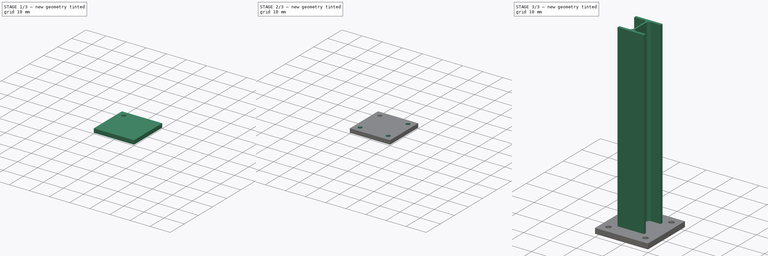
[diagram: build sequence overview — one tinted view per stage of 3, left to right]
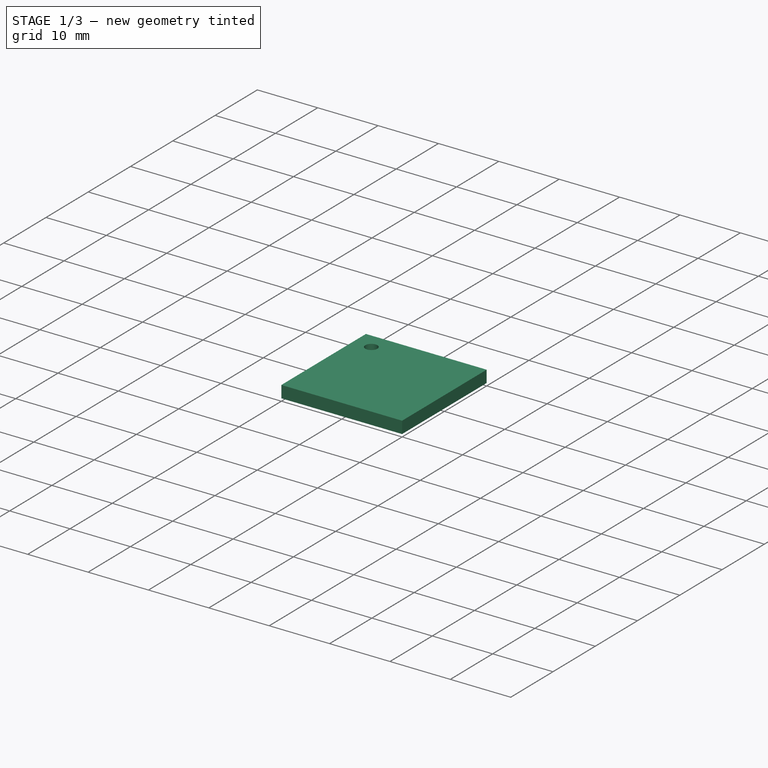
[diagram: stage 1 of 3 — iso view after this stage's code; geometry added in this stage tinted green]
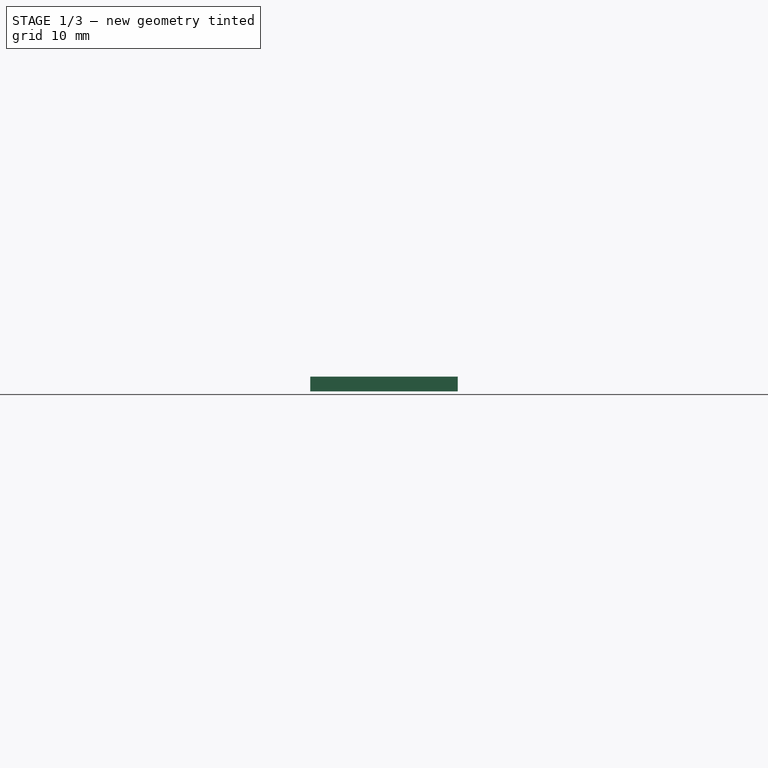
[diagram: stage 1 of 3 — front view after this stage's code; geometry added in this stage tinted green]
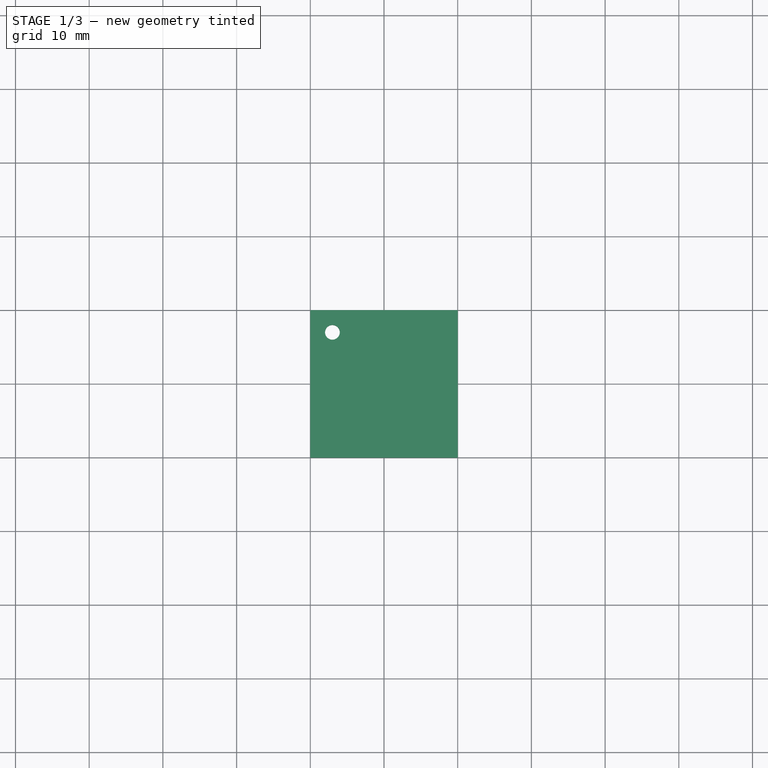
[diagram: stage 1 of 3 — top view after this stage's code; geometry added in this stage tinted green]
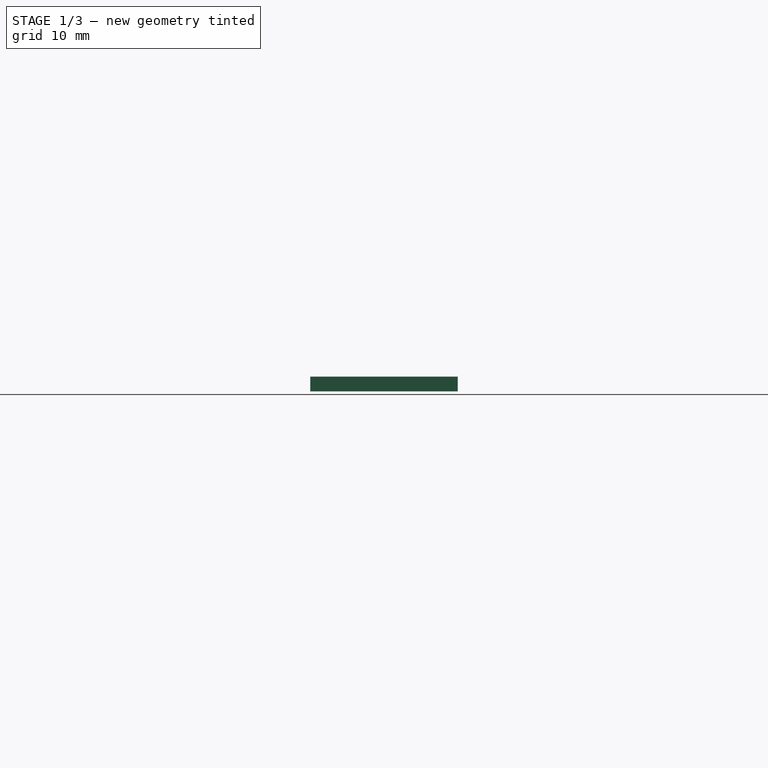
[diagram: stage 1 of 3 — right view after this stage's code; geometry added in this stage tinted green]
FCSTD DOCUMENT  (FreeCAD 0.15R4671 (Git))
Label: perfil_HBE
License: CreativeCommons Attribution-ShareAlike
LicenseURL: http://creativecommons.org/licenses/by-sa/4.0/
objects: Sketcher::SketchObject×4, PartDesign::Pad×2, PartDesign::Pocket×1, PartDesign::PolarPattern×1, Part::MultiFuse×1
note: 12 computed .brp shape members not serialized (recipe doc carries the construction recipe); baked Part::Feature solids carry a one-line shape summary decoded from their .brp

FEATURE [Sketcher::SketchObject] Sketch002
  sketch-geometry (4):
    g0: LineSegment StartX=-10 StartY=10 StartZ=0 EndX=10 EndY=10 EndZ=0
    g1: LineSegment StartX=10 StartY=10 StartZ=0 EndX=10 EndY=-10 EndZ=0
    g2: LineSegment StartX=10 StartY=-10 StartZ=0 EndX=-10 EndY=-10 EndZ=0
    g3: LineSegment StartX=-10 StartY=-10 StartZ=0 EndX=-10 EndY=10 EndZ=0
  constraints (11):
    c: Coincident(g0,g1)
    c: Coincident(g1,g2)
    c: Coincident(g2,g3)
    c: Coincident(g3,g0)
    c: Horizontal(g0)
    c: Horizontal(g2)
    c: Vertical(g1)
    c: Vertical(g3)
    c: Symmetric(g0,g1,g-1)
    c: Equal(g0,g3)
    c: DistanceX(g0) = 20
FEATURE [PartDesign::Pad] Pad001
  Length = 2
  Length2 = 100
  Sketch = -> Sketch002
  Type = 0
FEATURE [Sketcher::SketchObject] Sketch003
  Placement = pos=(0,0,2) rot=(0,0,1;0rad)
  Support = -> Pad001 [Face6]
  sketch-geometry (1):
    g0: Circle CenterX=-7 CenterY=7 CenterZ=0 NormalX=0 NormalY=0 NormalZ=1 Radius=1
  constraints (3):
    c: Radius(g0) = 1
    c: DistanceX(g-1,g0) = -7
    c: DistanceY(g-1,g0) = 7
FEATURE [PartDesign::Pocket] Pocket
  Length = 5
  Sketch = -> Sketch003
  Type = 0
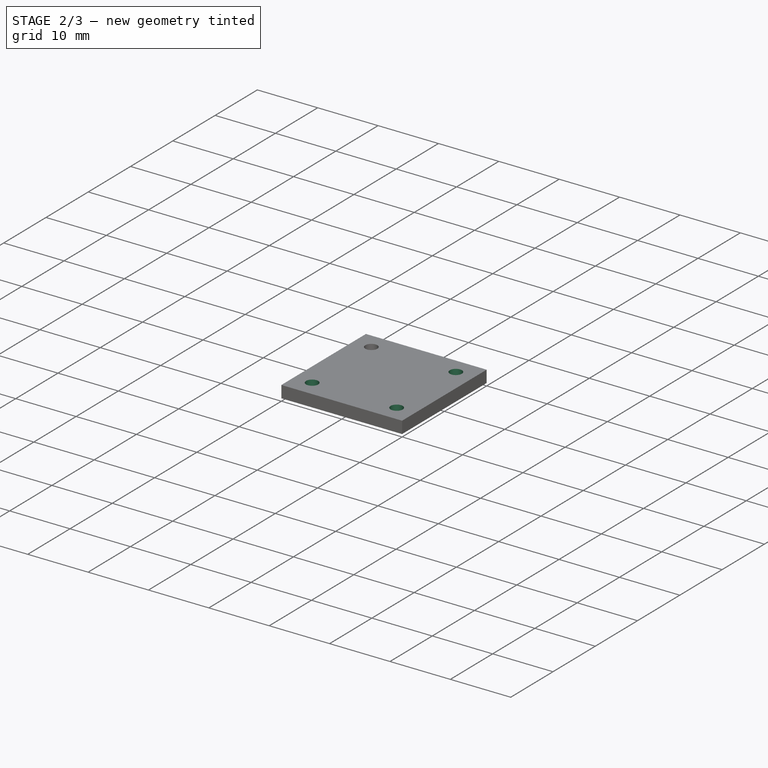
[diagram: stage 2 of 3 — iso view after this stage's code; geometry added in this stage tinted green]
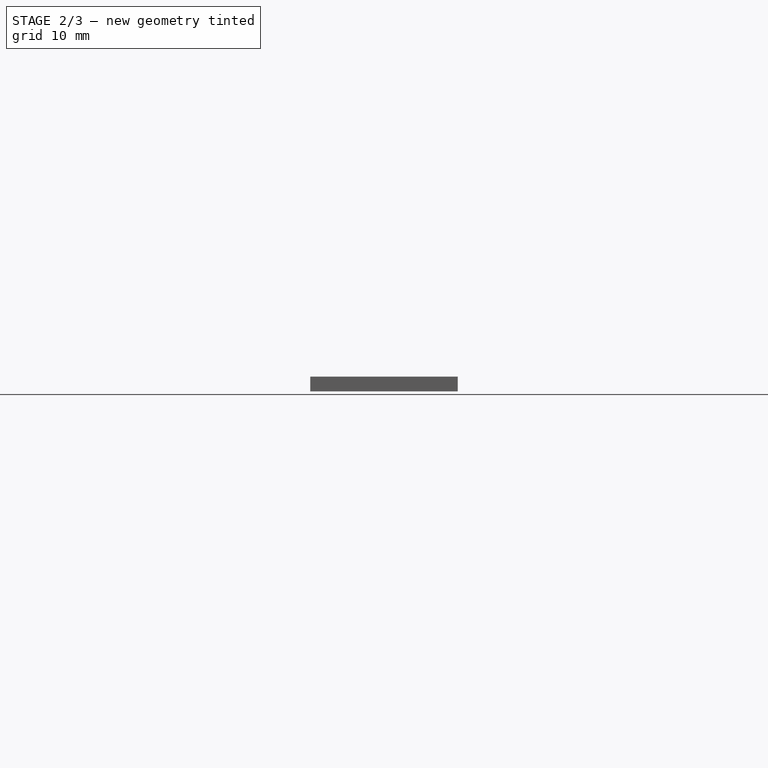
[diagram: stage 2 of 3 — front view after this stage's code; geometry added in this stage tinted green]
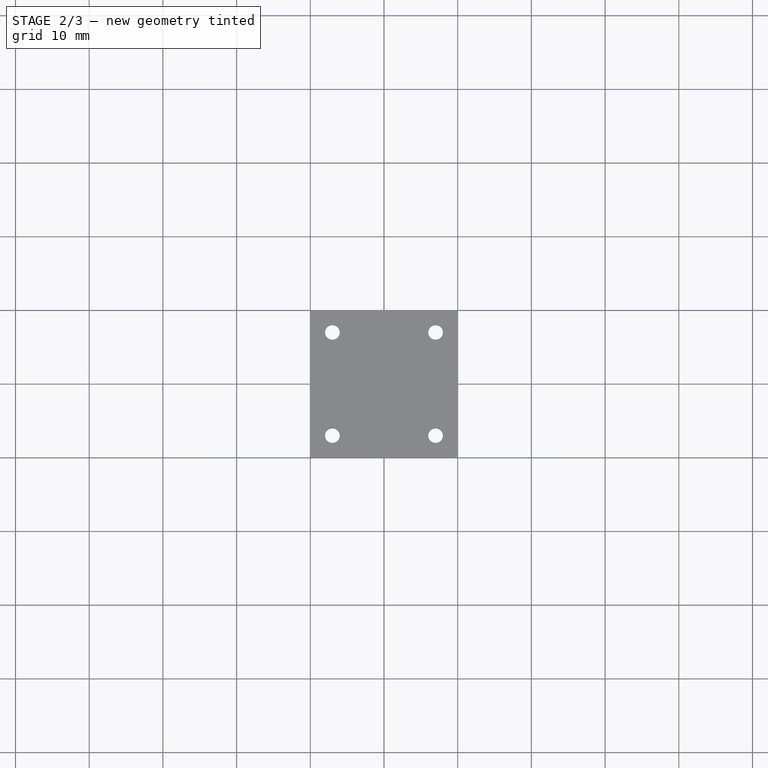
[diagram: stage 2 of 3 — top view after this stage's code; geometry added in this stage tinted green]
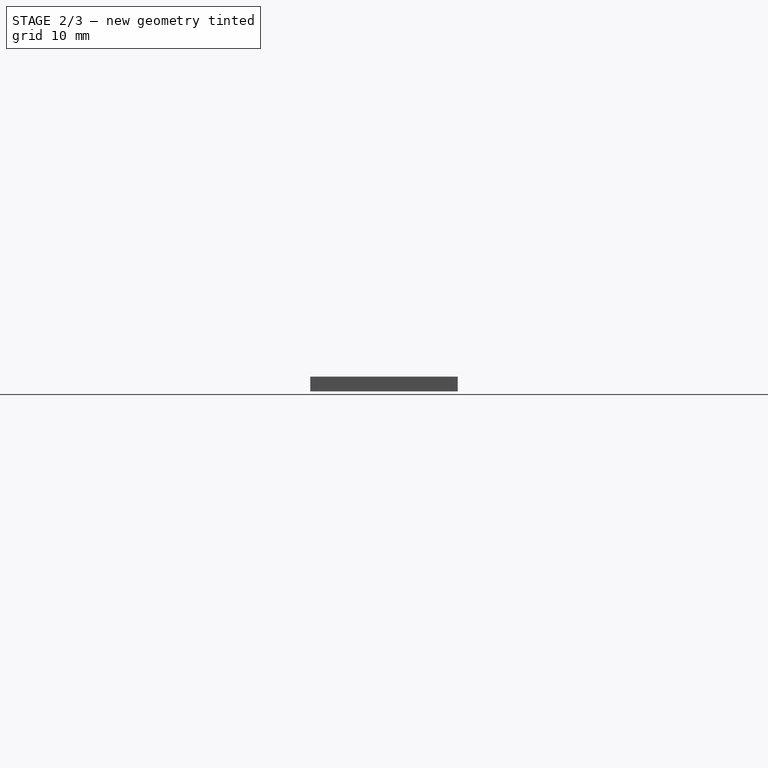
[diagram: stage 2 of 3 — right view after this stage's code; geometry added in this stage tinted green]
FEATURE [PartDesign::PolarPattern] PolarPattern
  Angle = 360
  Axis = -> Sketch003 [N_Axis]
  Occurrences = 4
  Originals = -> [Pocket]
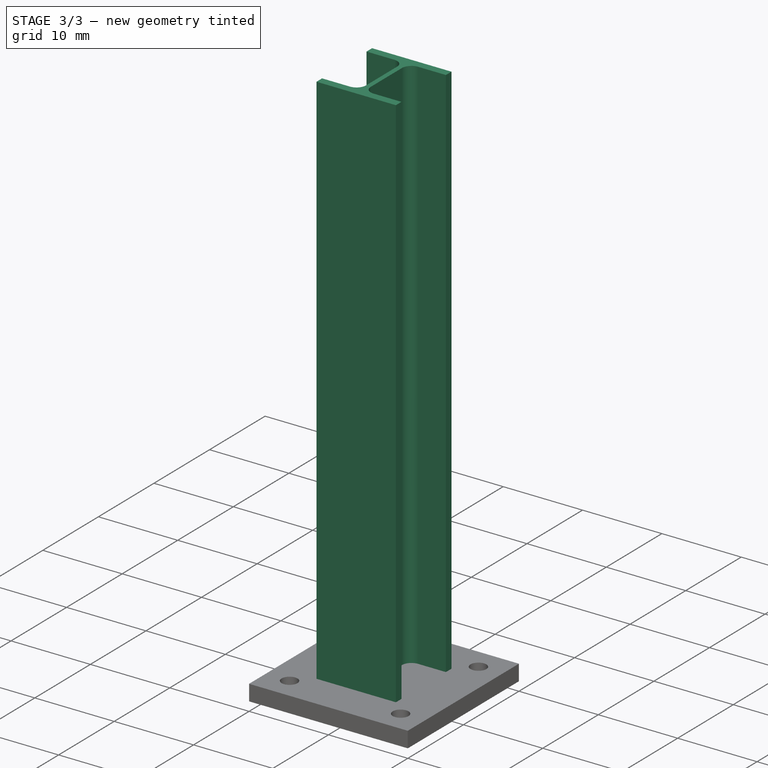
[diagram: stage 3 of 3 — iso view after this stage's code; geometry added in this stage tinted green]
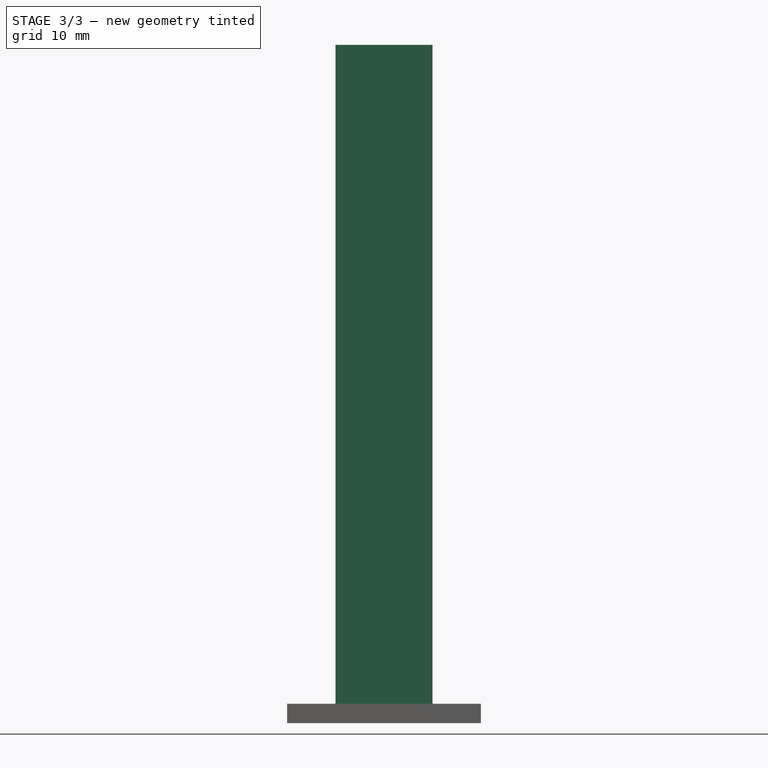
[diagram: stage 3 of 3 — front view after this stage's code; geometry added in this stage tinted green]
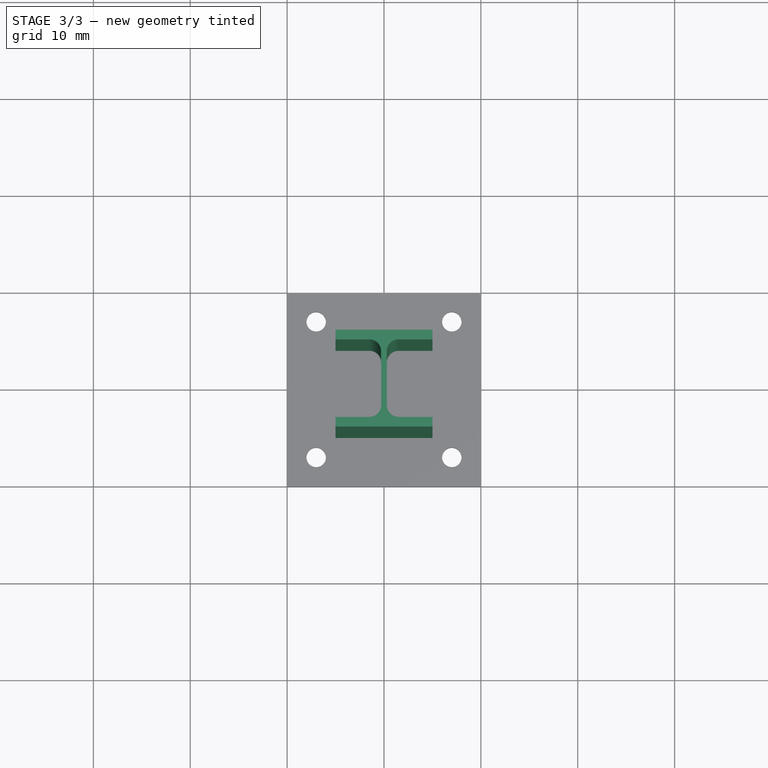
[diagram: stage 3 of 3 — top view after this stage's code; geometry added in this stage tinted green]
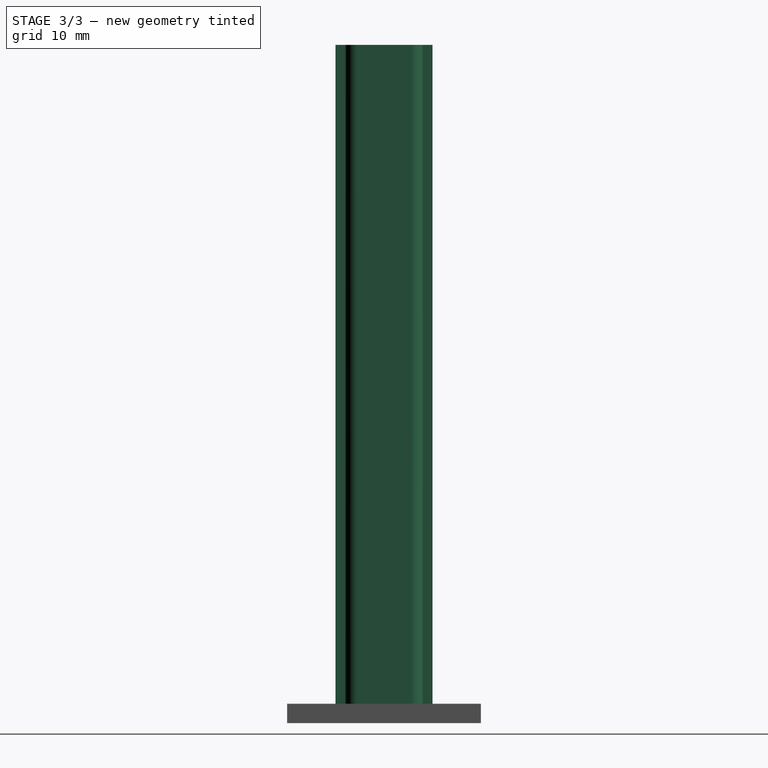
[diagram: stage 3 of 3 — right view after this stage's code; geometry added in this stage tinted green]
FEATURE [Sketcher::SketchObject] Sketch
  sketch-geometry (16):
    g0: LineSegment StartX=394.599 StartY=121.464 StartZ=0 EndX=394.599 EndY=131.464 EndZ=0
    g1: LineSegment StartX=394.599 StartY=131.464 StartZ=0 EndX=315.849 EndY=131.464 EndZ=0
    g2: ArcOfCircle CenterX=315.849 CenterY=149.464 CenterZ=0 NormalX=0 NormalY=0 NormalZ=1 Radius=18 StartAngle=3.14159 EndAngle=4.71239
    g3: LineSegment StartX=297.849 StartY=149.464 StartZ=0 EndX=297.849 EndY=283.464 EndZ=0
    g4: ArcOfCircle CenterX=315.849 CenterY=283.464 CenterZ=0 NormalX=0 NormalY=0 NormalZ=1 Radius=18 StartAngle=1.5708 EndAngle=3.14159
    g5: LineSegment StartX=315.849 StartY=301.464 StartZ=0 EndX=394.599 EndY=301.464 EndZ=0
    g6: LineSegment StartX=394.599 StartY=301.464 StartZ=0 EndX=394.599 EndY=311.464 EndZ=0
    g7: LineSegment StartX=394.599 StartY=311.464 StartZ=0 EndX=194.599 EndY=311.464 EndZ=0
    g8: LineSegment StartX=194.599 StartY=311.464 StartZ=0 EndX=194.599 EndY=301.464 EndZ=0
    g9: LineSegment StartX=194.599 StartY=301.464 StartZ=0 EndX=273.349 EndY=301.464 EndZ=0
    g10: ArcOfCircle CenterX=273.349 CenterY=283.464 CenterZ=0 NormalX=0 NormalY=0 NormalZ=1 Radius=18 StartAngle=6.28318 EndAngle=7.85398
    g11: LineSegment StartX=291.349 StartY=283.464 StartZ=0 EndX=291.349 EndY=149.464 EndZ=0
    g12: ArcOfCircle CenterX=273.349 CenterY=149.464 CenterZ=0 NormalX=0 NormalY=0 NormalZ=1 Radius=18 StartAngle=4.71239 EndAngle=6.28318
    g13: LineSegment StartX=273.349 StartY=131.464 StartZ=0 EndX=194.599 EndY=131.464 EndZ=0
    g14: LineSegment StartX=194.599 StartY=131.464 StartZ=0 EndX=194.599 EndY=121.464 EndZ=0
    g15: LineSegment StartX=194.599 StartY=121.464 StartZ=0 EndX=394.599 EndY=121.464 EndZ=0
  constraints (14):
    c: Horizontal(g13)
    c: Horizontal(g15)
    c: Horizontal(g1)
    c: Equal(g2,g12)
    c: Vertical(g0)
    c: Vertical(g14)
    c: Vertical(g11)
    c: Vertical(g3)
    c: Equal(g10,g4)
    c: Horizontal(g9)
    c: Horizontal(g5)
    c: Horizontal(g7)
    c: Vertical(g8)
    c: Vertical(g6)
FEATURE [Sketcher::SketchObject] Sketch001
  sketch-geometry (16):
    g0: LineSegment StartX=-5 StartY=4 StartZ=0 EndX=-5 EndY=5 EndZ=0
    g1: LineSegment StartX=-5 StartY=5 StartZ=0 EndX=5 EndY=5 EndZ=0
    g2: LineSegment StartX=5 StartY=5 StartZ=0 EndX=5 EndY=4 EndZ=0
    g3: LineSegment StartX=5 StartY=4 StartZ=0 EndX=1.5 EndY=4 EndZ=0
    g4: LineSegment StartX=0.3 StartY=2.8 StartZ=0 EndX=0.3 EndY=-2.8 EndZ=0
    g5: LineSegment StartX=1.5 StartY=-4 StartZ=0 EndX=5 EndY=-4 EndZ=0
    g6: LineSegment StartX=5 StartY=-4 StartZ=0 EndX=5 EndY=-5 EndZ=0
    g7: LineSegment StartX=5 StartY=-5 StartZ=0 EndX=-5 EndY=-5 EndZ=0
    g8: LineSegment StartX=-5 StartY=-5 StartZ=0 EndX=-5 EndY=-4 EndZ=0
    g9: LineSegment StartX=-5 StartY=-4 StartZ=0 EndX=-1.5 EndY=-4 EndZ=0
    g10: LineSegment StartX=-0.3 StartY=-2.8 StartZ=0 EndX=-0.3 EndY=2.8 EndZ=0
    g11: LineSegment StartX=-1.5 StartY=4 StartZ=0 EndX=-5 EndY=4 EndZ=0
    g12: ArcOfCircle CenterX=-1.5 CenterY=2.8 CenterZ=0 NormalX=0 NormalY=0 NormalZ=1 Radius=1.2 StartAngle=0 EndAngle=1.5708
    g13: ArcOfCircle CenterX=-1.5 CenterY=-2.8 CenterZ=0 NormalX=0 NormalY=0 NormalZ=1 Radius=1.2 StartAngle=4.71239 EndAngle=6.28319
    g14: ArcOfCircle CenterX=1.5 CenterY=-2.8 CenterZ=0 NormalX=0 NormalY=0 NormalZ=1 Radius=1.2 StartAngle=3.14159 EndAngle=4.71239
    g15: ArcOfCircle CenterX=1.5 CenterY=2.8 CenterZ=0 NormalX=0 NormalY=0 NormalZ=1 Radius=1.2 StartAngle=1.5708 EndAngle=3.14159
  constraints (43):
    c: Vertical(g0)
    c: Coincident(g0,g1)
    c: Horizontal(g1)
    c: Coincident(g1,g2)
    c: Coincident(g2,g3)
    c: Horizontal(g3)
    c: Horizontal(g5)
    c: Coincident(g5,g6)
    c: Coincident(g6,g7)
    c: Horizontal(g7)
    c: Coincident(g7,g8)
    c: Coincident(g8,g9)
    c: Horizontal(g9)
    c: Vertical(g10)
    c: Coincident(g11,g0)
    c: Horizontal(g11)
    c: Vertical(g8)
    c: Vertical(g6)
    c: Tangent(g11,g12) = -1.5708
    c: Tangent(g10,g12) = -1.5708
    c: Tangent(g9,g13) = -1.5708
    c: Tangent(g10,g13) = -1.5708
    c: Tangent(g5,g14) = -1.5708
    c: Tangent(g4,g14) = -1.5708
    c: Tangent(g3,g15) = -1.5708
    c: Tangent(g4,g15) = -1.5708
    c: Equal(g12,g15)
    c: Equal(g13,g14)
    c: Symmetric(g4,g4,g-1)
    c: Symmetric(g10,g10,g-1)
    c: Symmetric(g11,g9,g-1)
    c: Symmetric(g10,g4,g-2)
    c: Symmetric(g3,g5,g-1)
    c: Symmetric(g0,g2,g-2)
    c: Vertical(g2)
    c: Symmetric(g8,g5,g-2)
    c: Equal(g8,g0)
    c: Equal(g1,g7)
    c: DistanceX(g1) = 10
    c: DistanceY(g0) = 1
    c: DistanceY(g0,g7) = -10
    c: DistanceX(g10,g4) = 0.6
    c: Radius(g12) = 1.2
FEATURE [PartDesign::Pad] Pad
  Length = 70
  Length2 = 100
  Sketch = -> Sketch001
  Type = 0
FEATURE [Part::MultiFuse] Fusion
  Shapes = -> [PolarPattern,Pad]
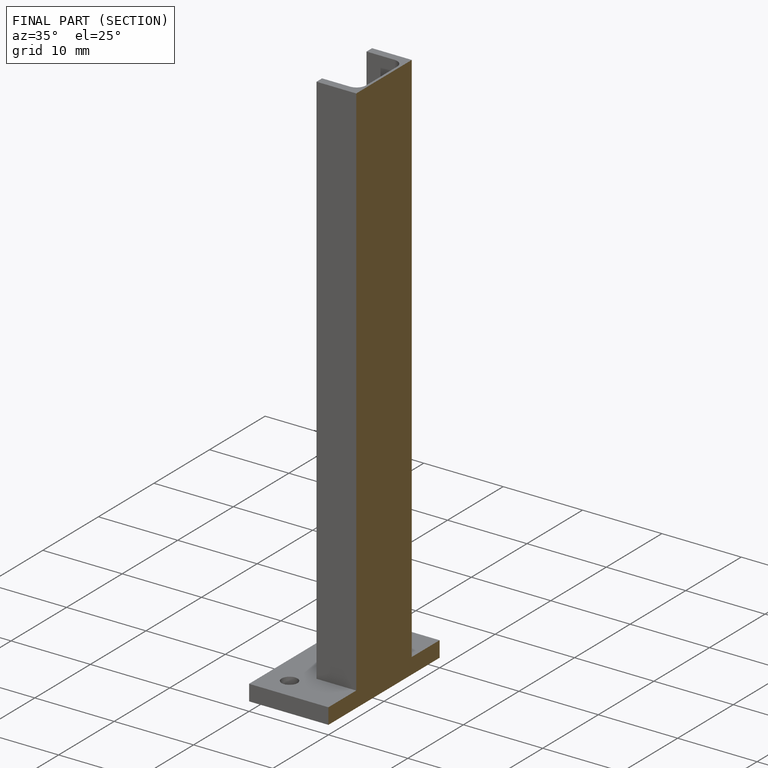
[diagram: finished part — half-section view (interior)]
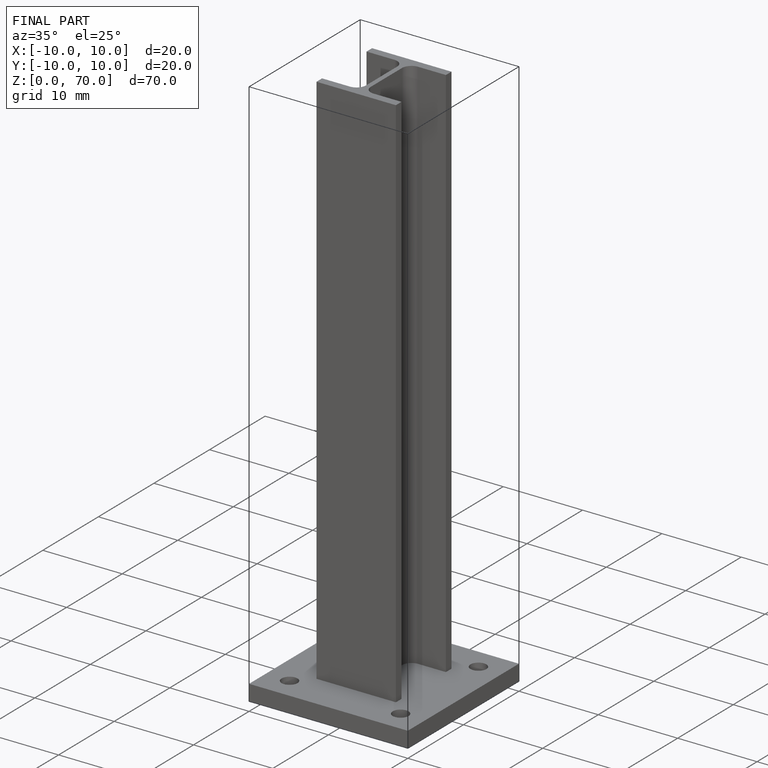
[diagram: finished part — iso view with bounding-box wireframe]
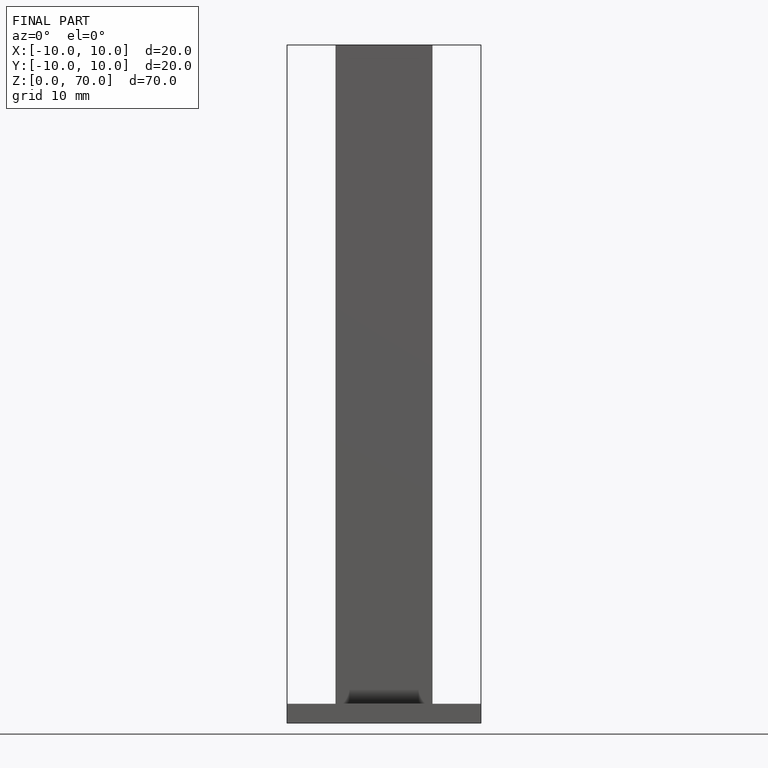
[diagram: finished part — front view with bounding-box wireframe]
